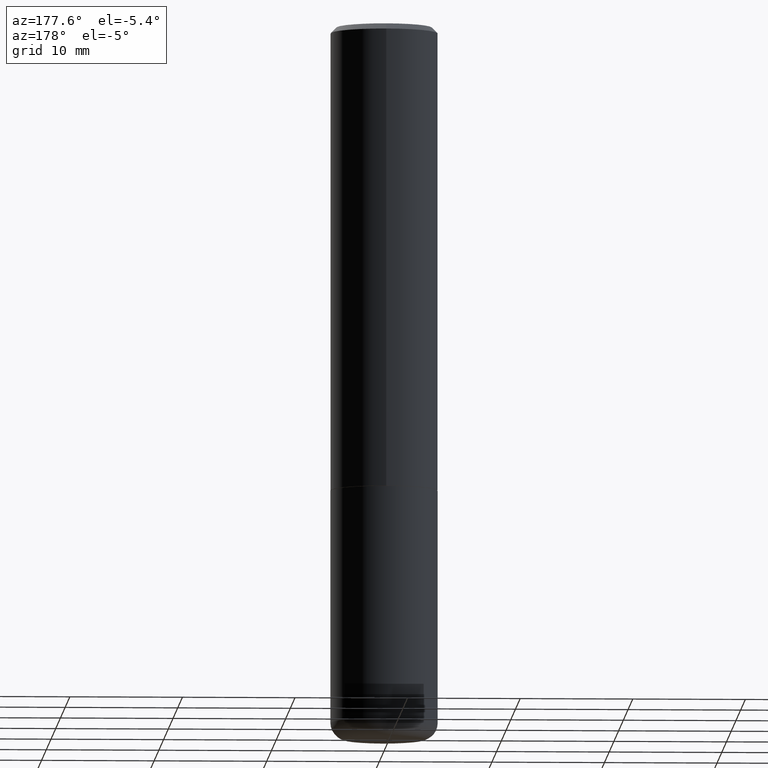
[diagram: clean part render]
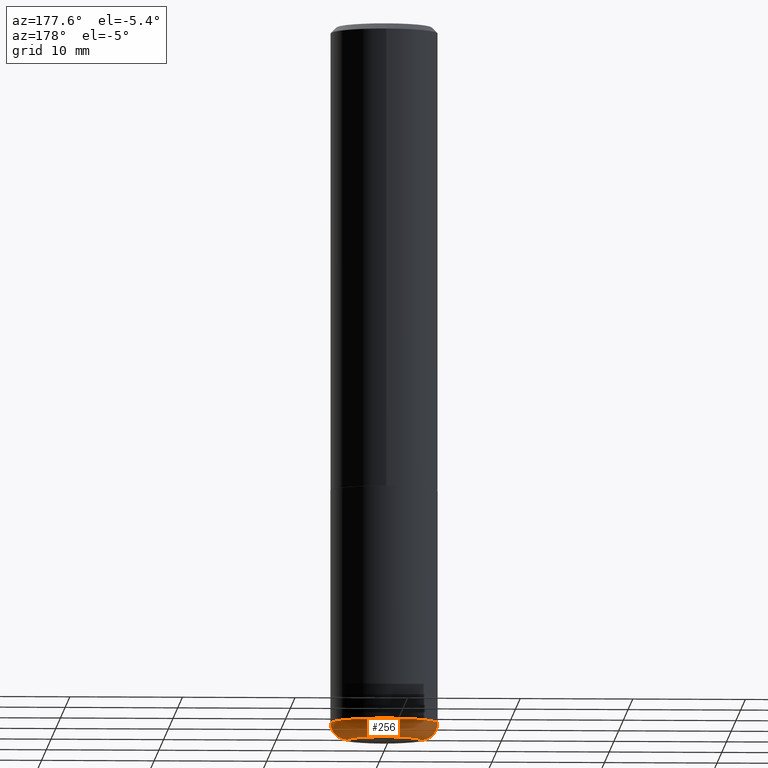
[diagram: same view with one face highlighted and labeled with its STEP entity id]
A machine part, auxiliary view. The second image highlights one B-rep face of the part: STEP entity #256.
In plain terms, the highlighted toroidal blend (fillet) surface has major radius 3.2385 mm and minor (blend) radius 1.524 mm.
Its self-contained STEP definition (entity closure, byte-faithful):
#3 = DIRECTION ( 'NONE',  ( -6.982962677686266711E-15, -1.000000000000000000, 3.491481338843145583E-15 ) ) ;
#10 = CARTESIAN_POINT ( 'NONE',  ( 5.966943887091733341E-29, -8.519214466777275048E-15, -2.440000000000000391 ) ) ;
#21 = EDGE_CURVE ( 'NONE', #107, #89, #211, .T. ) ;
#24 = CIRCLE ( 'NONE', #109, 0.1874999999999999722 ) ;
#68 = DIRECTION ( 'NONE',  ( 1.000000000000000000, -6.982962677686274599E-15, 0.000000000000000000 ) ) ;
#89 = VERTEX_POINT ( 'NONE', #159 ) ;
#96 = CIRCLE ( 'NONE', #214, 0.1275000000000000022 ) ;
#102 = DIRECTION ( 'NONE',  ( -2.445468806185136597E-29, 3.491481338843145583E-15, 1.000000000000000000 ) ) ;
#103 = DIRECTION ( 'NONE',  ( -2.445468806185136597E-29, 3.491481338843145583E-15, 1.000000000000000000 ) ) ;
#107 = VERTEX_POINT ( 'NONE', #349 ) ;
#109 = AXIS2_PLACEMENT_3D ( 'NONE', #10, #102, #327 ) ;
#111 = EDGE_CURVE ( 'NONE', #107, #178, #96, .T. ) ;
#124 = CARTESIAN_POINT ( 'NONE',  ( -0.1275000000000000022, -7.613272478683147690E-15, -2.440000000000000391 ) ) ;
#125 = ORIENTED_EDGE ( 'NONE', *, *, #139, .T. ) ;
#139 = EDGE_CURVE ( 'NONE', #178, #326, #368, .T. ) ;
#158 = DIRECTION ( 'NONE',  ( -2.445468806185136597E-29, 3.491481338843145583E-15, 1.000000000000000000 ) ) ;
#159 = CARTESIAN_POINT ( 'NONE',  ( 0.1874999999999999722, -9.828519968843450056E-15, -2.440000000000000391 ) ) ;
#161 = CARTESIAN_POINT ( 'NONE',  ( 0.1275000000000000022, -9.409542208182273423E-15, -2.440000000000000391 ) ) ;
#178 = VERTEX_POINT ( 'NONE', #410 ) ;
#179 = AXIS2_PLACEMENT_3D ( 'NONE', #161, #3, #68 ) ;
#185 = AXIS2_PLACEMENT_3D ( 'NONE', #124, #284, #310 ) ;
#191 = CARTESIAN_POINT ( 'NONE',  ( 5.966943887091733341E-29, -8.519214466777275048E-15, -2.440000000000000391 ) ) ;
#211 = CIRCLE ( 'NONE', #179, 0.05999999999999994227 ) ;
#214 = AXIS2_PLACEMENT_3D ( 'NONE', #252, #158, #285 ) ;
#220 = AXIS2_PLACEMENT_3D ( 'NONE', #191, #103, #362 ) ;
#252 = CARTESIAN_POINT ( 'NONE',  ( 6.113672015462842613E-29, -8.728703347107864943E-15, -2.500000000000000000 ) ) ;
#256 = ADVANCED_FACE ( 'NONE', ( #385 ), #404, .T. ) ;
#284 = DIRECTION ( 'NONE',  ( 7.105427357601001859E-15, 1.000000000000000000, -3.491481338843145583E-15 ) ) ;
#285 = DIRECTION ( 'NONE',  ( 1.000000000000000000, -6.982962677686267499E-15, 0.000000000000000000 ) ) ;
#308 = ORIENTED_EDGE ( 'NONE', *, *, #21, .F. ) ;
#310 = DIRECTION ( 'NONE',  ( -1.000000000000000000, 7.105427357600997914E-15, 0.000000000000000000 ) ) ;
#315 = EDGE_CURVE ( 'NONE', #89, #326, #24, .T. ) ;
#326 = VERTEX_POINT ( 'NONE', #359 ) ;
#327 = DIRECTION ( 'NONE',  ( 1.000000000000000000, -6.982962677686263555E-15, 0.000000000000000000 ) ) ;
#349 = CARTESIAN_POINT ( 'NONE',  ( 0.1275000000000000022, -9.619031088512863317E-15, -2.500000000000000000 ) ) ;
#359 = CARTESIAN_POINT ( 'NONE',  ( -0.1874999999999999722, -7.186946837227088777E-15, -2.440000000000000391 ) ) ;
#362 = DIRECTION ( 'NONE',  ( 1.000000000000000000, -6.982962677686265133E-15, 4.883557194083112340E-29 ) ) ;
#368 = CIRCLE ( 'NONE', #185, 0.05999999999999994227 ) ;
#373 = EDGE_LOOP ( 'NONE', ( #395, #125, #399, #308 ) ) ;
#385 = FACE_OUTER_BOUND ( 'NONE', #373, .T. ) ;
#395 = ORIENTED_EDGE ( 'NONE', *, *, #111, .T. ) ;
#399 = ORIENTED_EDGE ( 'NONE', *, *, #315, .F. ) ;
#404 = TOROIDAL_SURFACE ( 'NONE', #220, 0.1275000000000000022, 0.05999999999999994227 ) ;
#410 = CARTESIAN_POINT ( 'NONE',  ( -0.1275000000000000022, -7.504854098120412392E-15, -2.500000000000000000 ) ) ;